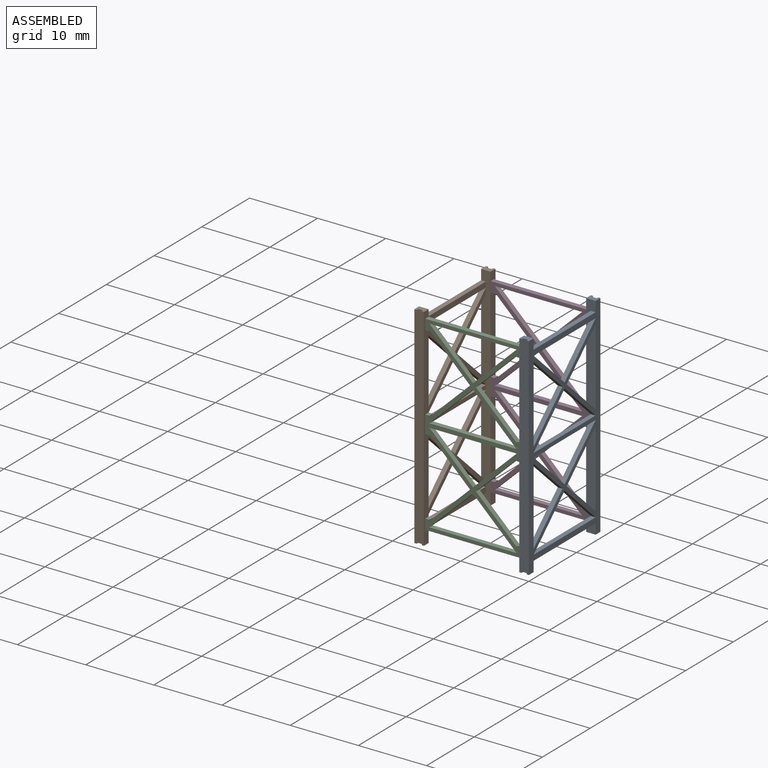
[diagram: assembled view]
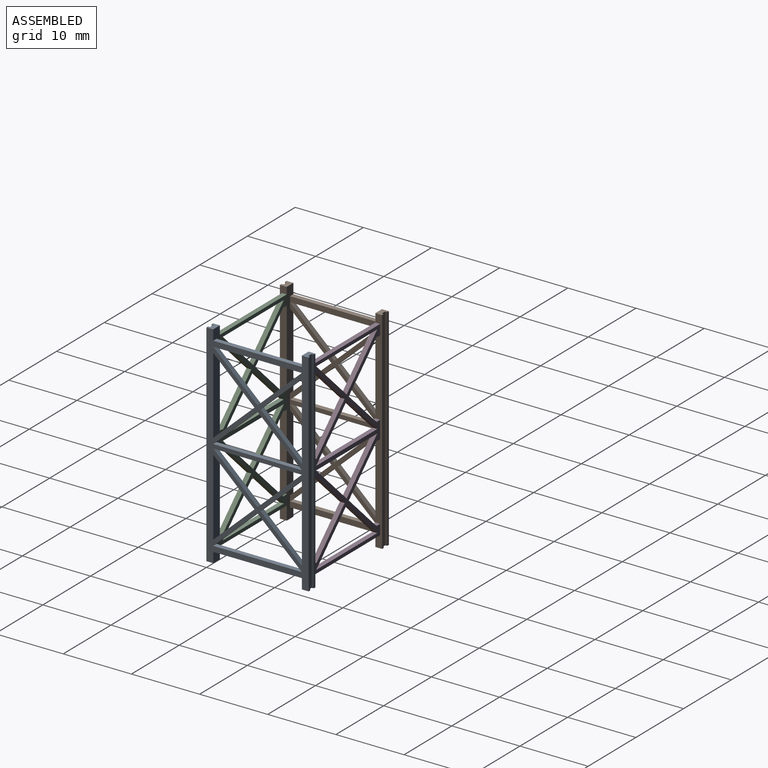
[diagram: assembled view, second angle]
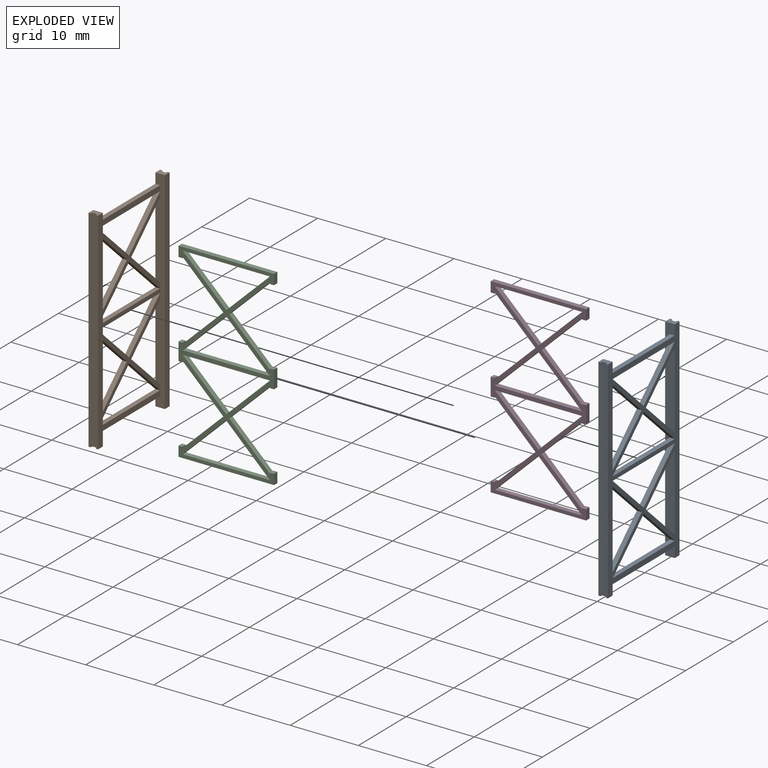
[diagram: exploded view]
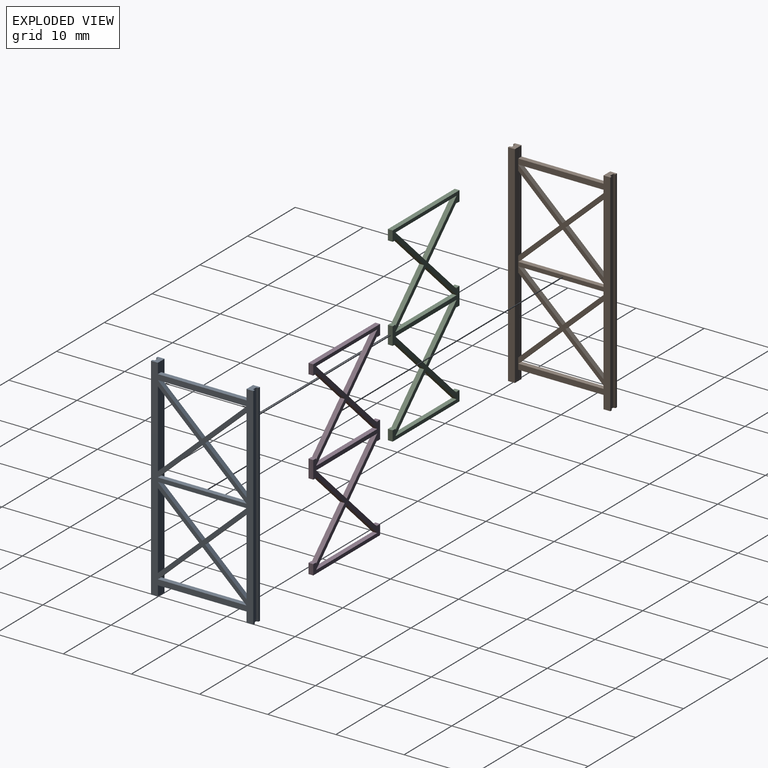
[diagram: exploded view, second angle]
ASSEMBLY  parts=4 mates=3
PART A: 46 faces, bbox 15x1.4x31 mm
  f0: plane 31x0.3mm, normal (1,0,0), area 9.3mm2, adj f16,f18,f38,f44
  f1: plane 31x0.3mm, normal (-1,0,0), area 9.3mm2, adj f2,f3,f39,f42
  f2: plane 1.4x1mm, normal (0,0,1), area 1.2mm2, adj f1,f20,f21,f37,f39,f40,f41,f42
  f3: plane 1.4x1mm, normal (0,0,-1), area 1.2mm2, adj f1,f20,f21,f37,f39,f40,f41,f42
  f4: plane 13x0.8mm, normal (0,1,0), area 10.4mm2, adj f10,f12,f19,f21
  f5: plane 13x12.9mm, normal (0,1,0), area 20.9mm2, adj f9,f11,f12,f21,f26,f28,f29,f34
  f6: plane 13x0.6mm, normal (0,1,0), area 7.8mm2, adj f12,f14,f21,f27
  f7: plane 13x12.9mm, normal (0,1,0), area 20.9mm2, adj f12,f13,f15,f21,f23,f25,f30,f31
  f8: plane 13x0.8mm, normal (0,1,0), area 10.4mm2, adj f12,f21,f22,f24
  f9: plane 6.5x6.04mm, normal (0.68,0,0.73), area 6.2mm2, adj f5,f10,f36,f37
  f10: plane 13x0.7mm, normal (0,0,-1), area 9.1mm2, adj f4,f9,f36,f37
  f11: plane 6.06x5.63mm, normal (0.68,0,-0.73), area 5.8mm2, adj f5,f12,f29,f37
  f12: plane 31x1.4mm, normal (-1,0,0), area 39.6mm2, adj f4,f5,f6,f7,f8,f11,f15,f16
  f13: plane 6.5x6.04mm, normal (0.68,0,0.73), area 6.2mm2, adj f7,f14,f30,f37
  f14: plane 13x0.7mm, normal (0,0,-1), area 9.1mm2, adj f6,f13,f30,f37
  f15: plane 6.06x5.63mm, normal (0.68,0,-0.73), area 5.8mm2, adj f7,f12,f31,f37
  f16: plane 1.4x1mm, normal (0,0,-1), area 1.2mm2, adj f0,f12,f17,f37,f38,f43,f44,f45
  f17: plane 31x0.3mm, normal (1,0,0), area 9.3mm2, adj f16,f18,f37,f43
  f18: plane 1.4x1mm, normal (0,0,1), area 1.2mm2, adj f0,f12,f17,f37,f38,f43,f44,f45
  f19: plane 13x0.7mm, normal (0,0,1), area 9.1mm2, adj f4,f12,f21,f37
  f20: plane 31x0.3mm, normal (-1,0,0), area 9.3mm2, adj f2,f3,f37,f40
  f21: plane 31x1.4mm, normal (1,0,0), area 39.6mm2, adj f2,f3,f4,f5,f6,f7,f8,f19
  f22: plane 13x0.7mm, normal (0,0,-1), area 9.1mm2, adj f8,f12,f21,f37
  f23: plane 6.06x5.63mm, normal (-0.68,0,-0.73), area 5.8mm2, adj f7,f21,f32,f37
  f24: plane 13x0.7mm, normal (0,0,1), area 9.1mm2, adj f8,f25,f33,f37
  f25: plane 6.5x6.04mm, normal (0.68,0,-0.73), area 6.2mm2, adj f7,f24,f33,f37
  f26: plane 6.06x5.63mm, normal (-0.68,0,-0.73), area 5.8mm2, adj f5,f21,f34,f37
  f27: plane 13x0.7mm, normal (0,0,1), area 9.1mm2, adj f6,f28,f35,f37
  f28: plane 6.5x6.04mm, normal (0.68,0,-0.73), area 6.2mm2, adj f5,f27,f35,f37
  f29: plane 6.06x5.63mm, normal (0.68,0,0.73), area 5.8mm2, adj f5,f11,f12,f37
  f30: plane 6.5x6.04mm, normal (-0.68,0,0.73), area 6.2mm2, adj f7,f13,f14,f37
  f31: plane 6.06x5.63mm, normal (0.68,0,0.73), area 5.8mm2, adj f7,f12,f15,f37
  f32: plane 6.06x5.63mm, normal (-0.68,0,0.73), area 5.8mm2, adj f7,f21,f23,f37
  f33: plane 6.5x6.04mm, normal (-0.68,0,-0.73), area 6.2mm2, adj f7,f24,f25,f37
  f34: plane 6.06x5.63mm, normal (-0.68,0,0.73), area 5.8mm2, adj f5,f21,f26,f37
  f35: plane 6.5x6.04mm, normal (-0.68,0,-0.73), area 6.2mm2, adj f5,f27,f28,f37
  f36: plane 6.5x6.04mm, normal (-0.68,0,0.73), area 6.2mm2, adj f5,f9,f10,f37
  f37: plane 31x15mm, normal (0,-1,0), area 132.5mm2, adj f2,f3,f9,f10,f11,f12,f13,f14
  f38: plane 31x1mm, normal (0,1,0), area 31mm2, adj f0,f12,f16,f18
  f39: plane 31x1mm, normal (0,1,0), area 31mm2, adj f1,f2,f3,f21
  f40: plane 31x0.3mm, normal (-0.26,0.97,0), area 9.6mm2, adj f2,f3,f20,f41
  f41: plane 31x0.64mm, normal (-1,0,0), area 19.8mm2, adj f2,f3,f40,f42
  f42: plane 31x0.3mm, normal (-0.26,-0.97,0), area 9.6mm2, adj f1,f2,f3,f41
  f43: plane 31x0.3mm, normal (0.26,0.97,0), area 9.6mm2, adj f16,f17,f18,f45
  f44: plane 31x0.3mm, normal (0.26,-0.97,0), area 9.6mm2, adj f0,f16,f18,f45
  f45: plane 31x0.64mm, normal (1,0,0), area 19.8mm2, adj f16,f18,f43,f44
PART B: same geometry as A
PART C: 46 faces, bbox 14x0.7x28 mm
  f0: plane 6.4x6.18mm, normal (0.69,0,0.72), area 6.2mm2, adj f1,f39,f40,f41
  f1: plane 12.8x0.7mm, normal (0,0,-1), area 9mm2, adj f0,f39,f40,f41
  f2: plane 6.4x6.18mm, normal (0.69,0,0.72), area 6.2mm2, adj f37,f40,f41,f44
  f3: plane 1.5x0.7mm, normal (-1,0,0), area 1.1mm2, adj f4,f40,f41,f45
  f4: plane 0.7x0.6mm, normal (0,0,-1), area 0.4mm2, adj f3,f5,f40,f41
  f5: plane 0.7x0.17mm, normal (1,0,0), area 0.1mm2, adj f4,f6,f40,f41
  f6: plane 5.97x5.77mm, normal (-0.69,0,-0.72), area 5.8mm2, adj f5,f7,f40,f41
  f7: plane 5.97x5.77mm, normal (-0.69,0,0.72), area 5.8mm2, adj f6,f8,f40,f41
  f8: plane 0.7x0.17mm, normal (1,0,0), area 0.1mm2, adj f7,f9,f40,f41
  f9: plane 0.7x0.6mm, normal (0,0,1), area 0.4mm2, adj f8,f10,f40,f41
  f10: plane 2.6x0.7mm, normal (-1,0,0), area 1.8mm2, adj f9,f11,f40,f41
  f11: plane 0.7x0.6mm, normal (0,0,-1), area 0.4mm2, adj f10,f12,f40,f41
  f12: plane 0.7x0.17mm, normal (1,0,0), area 0.1mm2, adj f11,f13,f40,f41
  f13: plane 5.97x5.77mm, normal (-0.69,0,-0.72), area 5.8mm2, adj f12,f14,f40,f41
  f14: plane 5.97x5.77mm, normal (-0.69,0,0.72), area 5.8mm2, adj f13,f15,f40,f41
  f15: plane 0.7x0.17mm, normal (1,0,0), area 0.1mm2, adj f14,f16,f40,f41
  f16: plane 0.7x0.6mm, normal (0,0,1), area 0.4mm2, adj f15,f17,f40,f41
  f17: plane 1.5x0.7mm, normal (-1,0,0), area 1.1mm2, adj f16,f40,f41,f43
  f18: plane 6.4x6.18mm, normal (0.69,0,-0.72), area 6.2mm2, adj f19,f40,f41,f42
  f19: plane 6.4x6.18mm, normal (-0.69,0,-0.72), area 6.2mm2, adj f18,f40,f41,f42
  f20: plane 1.5x0.7mm, normal (1,0,0), area 1.1mm2, adj f21,f40,f41,f43
  f21: plane 0.7x0.6mm, normal (0,0,1), area 0.4mm2, adj f20,f22,f40,f41
  f22: plane 0.7x0.17mm, normal (-1,0,0), area 0.1mm2, adj f21,f23,f40,f41
  f23: plane 5.97x5.77mm, normal (0.69,0,0.72), area 5.8mm2, adj f22,f24,f40,f41
  f24: plane 5.97x5.77mm, normal (0.69,0,-0.72), area 5.8mm2, adj f23,f25,f40,f41
  f25: plane 0.7x0.17mm, normal (-1,0,0), area 0.1mm2, adj f24,f26,f40,f41
  f26: plane 0.7x0.6mm, normal (0,0,-1), area 0.4mm2, adj f25,f27,f40,f41
  f27: plane 2.6x0.7mm, normal (1,0,0), area 1.8mm2, adj f26,f28,f40,f41
  f28: plane 0.7x0.6mm, normal (0,0,1), area 0.4mm2, adj f27,f29,f40,f41
  f29: plane 0.7x0.17mm, normal (-1,0,0), area 0.1mm2, adj f28,f30,f40,f41
  f30: plane 5.97x5.77mm, normal (0.69,0,0.72), area 5.8mm2, adj f29,f31,f40,f41
  f31: plane 5.97x5.77mm, normal (0.69,0,-0.72), area 5.8mm2, adj f30,f32,f40,f41
  f32: plane 0.7x0.17mm, normal (-1,0,0), area 0.1mm2, adj f31,f33,f40,f41
  f33: plane 0.7x0.6mm, normal (0,0,-1), area 0.4mm2, adj f32,f34,f40,f41
  f34: plane 1.5x0.7mm, normal (1,0,0), area 1.1mm2, adj f33,f40,f41,f45
  f35: plane 12.8x0.7mm, normal (0,0,1), area 9mm2, adj f36,f38,f40,f41
  f36: plane 6.4x6.18mm, normal (0.69,0,-0.72), area 6.2mm2, adj f35,f38,f40,f41
  f37: plane 6.4x6.18mm, normal (-0.69,0,0.72), area 6.2mm2, adj f2,f40,f41,f44
  f38: plane 6.4x6.18mm, normal (-0.69,0,-0.72), area 6.2mm2, adj f35,f36,f40,f41
  f39: plane 6.4x6.18mm, normal (-0.69,0,0.72), area 6.2mm2, adj f0,f1,f40,f41
  f40: plane 28x14mm, normal (0,-1,0), area 69.2mm2, adj f0,f1,f2,f3,f4,f5,f6,f7
  f41: plane 28x14mm, normal (0,1,0), area 69.2mm2, adj f0,f1,f2,f3,f4,f5,f6,f7
  f42: plane 12.8x0.7mm, normal (0,0,1), area 9mm2, adj f18,f19,f40,f41
  f43: plane 14x0.7mm, normal (0,0,-1), area 9.8mm2, adj f17,f20,f40,f41
  f44: plane 12.8x0.7mm, normal (0,0,-1), area 9mm2, adj f2,f37,f40,f41
  f45: plane 14x0.7mm, normal (0,0,1), area 9.8mm2, adj f3,f34,f40,f41
PART D: same geometry as C
PLACE A rot(axis=(0,0,1),90deg) t=(-0.7,0,1.5)mm
PLACE B rot(axis=(0,0,-1),90deg) t=(-16.1,15,1.25)mm
PLACE C t=(-15.4,1,2.25)mm
PLACE D t=(-15.4,14.7,2)mm
MATE fastened C.f34 <-> A.f39  axis (1,0,0) through (-1.4,0.3,29.75)mm
MATE fastened A.f38 <-> D.f34  axis (-1,0,0) through (-1.4,15,31)mm
MATE fastened B.f39 <-> D.f3  axis (1,0,0) through (-15.4,15,30.75)mm
